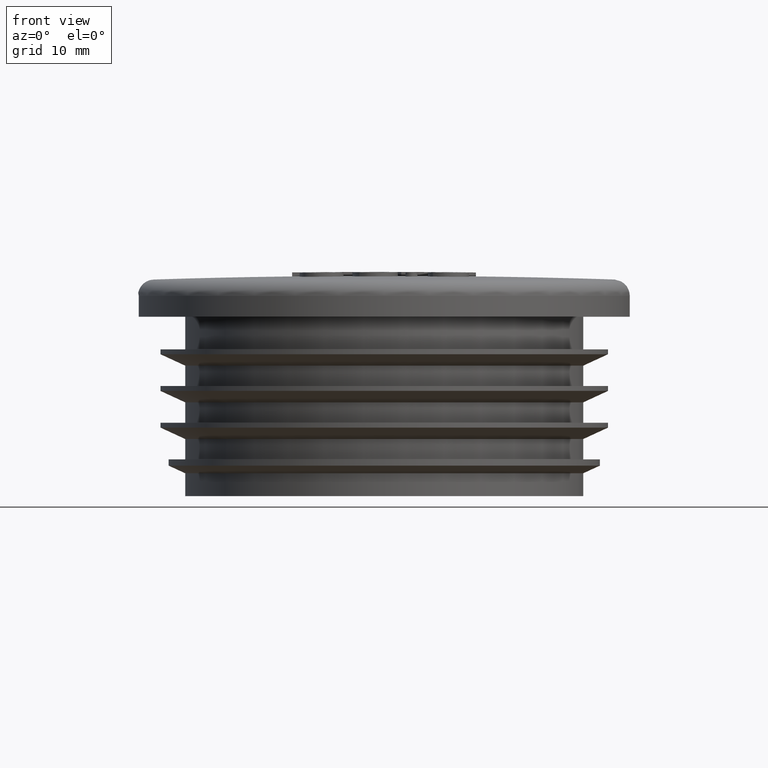
[diagram: clean part render]
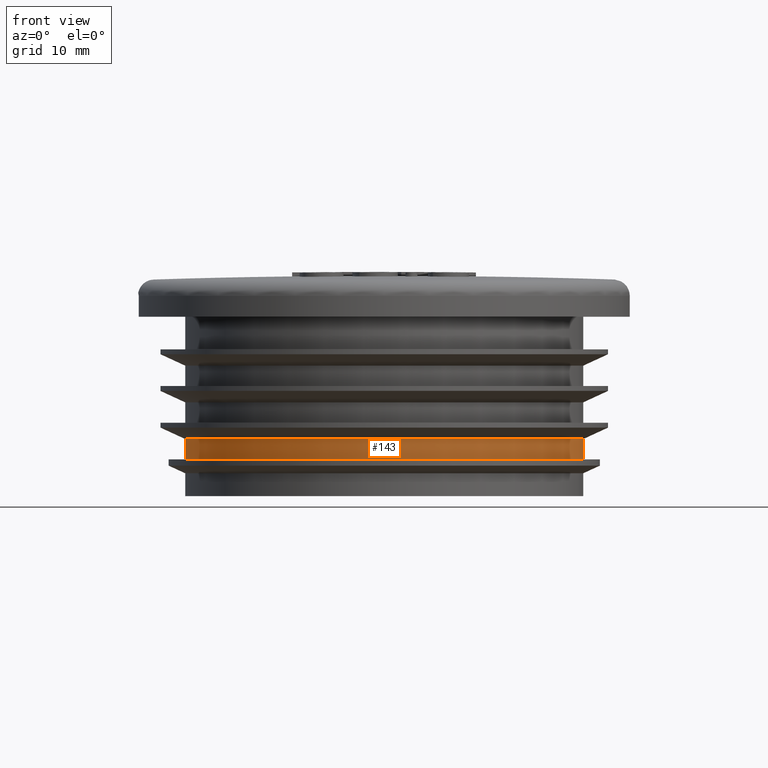
[diagram: same view with one face highlighted and labeled with its STEP entity id]
A machine part, front view. The second image highlights one B-rep face of the part: STEP entity #143.
In plain terms, the highlighted cylindrical surface (bore or boss wall) has radius 24.45 mm, axis along (0, 0, 1).
Its self-contained STEP definition (entity closure, byte-faithful):
#143 = ADVANCED_FACE( '', ( #318, #319 ), #320, .T. );
#318 = FACE_OUTER_BOUND( '', #809, .T. );
#319 = FACE_OUTER_BOUND( '', #810, .T. );
#320 = CYLINDRICAL_SURFACE( '', #811, 24.4500000000000 );
#809 = EDGE_LOOP( '', ( #1448 ) );
#810 = EDGE_LOOP( '', ( #1449 ) );
#811 = AXIS2_PLACEMENT_3D( '', #1450, #1451, #1452 );
#1448 = ORIENTED_EDGE( '', *, *, #1671, .F. );
#1449 = ORIENTED_EDGE( '', *, *, #1672, .T. );
#1450 = CARTESIAN_POINT( '', ( 0.000000000000000, 0.000000000000000, 22.0000000000000 ) );
#1451 = DIRECTION( '', ( 0.000000000000000, 6.12303176911189E-017, 1.00000000000000 ) );
#1452 = DIRECTION( '', ( 0.000000000000000, 1.00000000000000, -6.12303176911189E-017 ) );
#1671 = EDGE_CURVE( '', #1936, #1936, #1937, .T. );
#1672 = EDGE_CURVE( '', #1938, #1938, #1939, .T. );
#1936 = VERTEX_POINT( '', #3324 );
#1937 = CIRCLE( '', #3325, 24.4500000000000 );
#1938 = VERTEX_POINT( '', #3326 );
#1939 = CIRCLE( '', #3327, 24.4500000000000 );
#3324 = CARTESIAN_POINT( '', ( 0.000000000000000, 24.4500000000000, 4.49999999999999 ) );
#3325 = AXIS2_PLACEMENT_3D( '', #3425, #3426, #3427 );
#3326 = CARTESIAN_POINT( '', ( 0.000000000000000, 24.4500000000000, 6.99999999999999 ) );
#3327 = AXIS2_PLACEMENT_3D( '', #3428, #3429, #3430 );
#3425 = CARTESIAN_POINT( '', ( 0.000000000000000, -1.07153055959458E-015, 4.49999999999999 ) );
#3426 = DIRECTION( '', ( 0.000000000000000, -6.12303176911189E-017, -1.00000000000000 ) );
#3427 = DIRECTION( '', ( 0.000000000000000, 1.00000000000000, -6.12303176911189E-017 ) );
#3428 = CARTESIAN_POINT( '', ( 0.000000000000000, -9.18454765366783E-016, 7.00000000000000 ) );
#3429 = DIRECTION( '', ( 0.000000000000000, -6.12303176911189E-017, -1.00000000000000 ) );
#3430 = DIRECTION( '', ( 0.000000000000000, 1.00000000000000, -6.12303176911189E-017 ) );